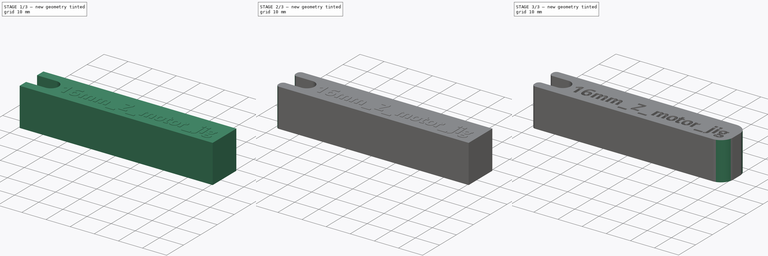
[diagram: build sequence overview — one tinted view per stage of 3, left to right]
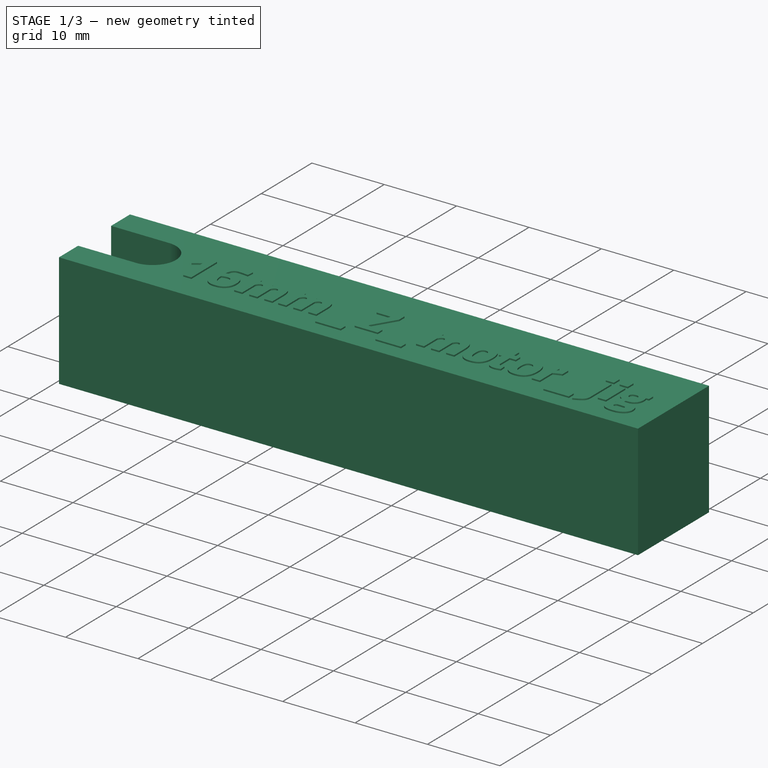
[diagram: stage 1 of 3 — iso view after this stage's code; geometry added in this stage tinted green]
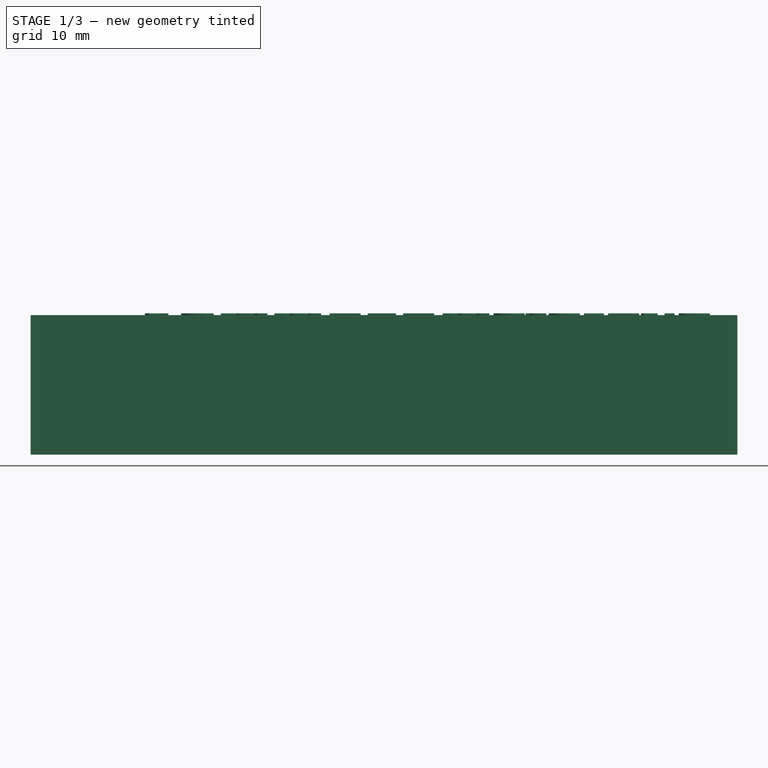
[diagram: stage 1 of 3 — front view after this stage's code; geometry added in this stage tinted green]
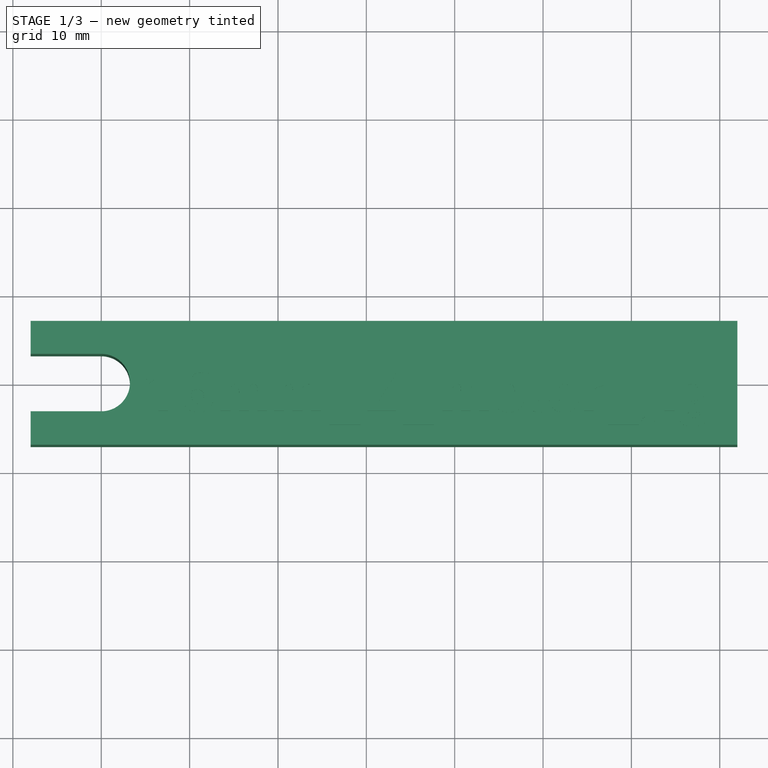
[diagram: stage 1 of 3 — top view after this stage's code; geometry added in this stage tinted green]
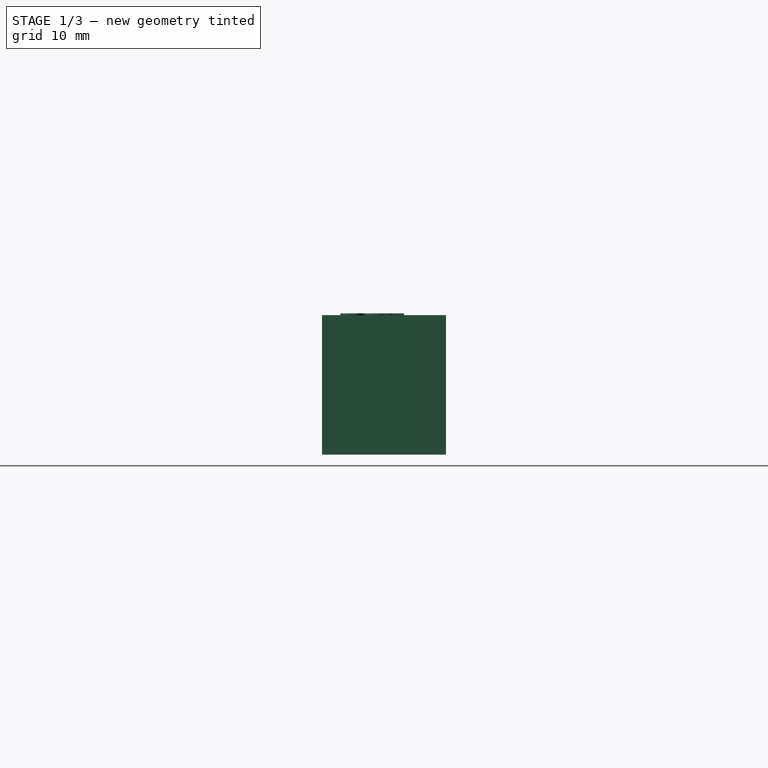
[diagram: stage 1 of 3 — right view after this stage's code; geometry added in this stage tinted green]
FCSTD DOCUMENT  (FreeCAD 0.16R5861 (Git))
Label: 16mm_coupler_spacer_Z_axis_v0.1
License: CreativeCommons Attribution-ShareAlike
LicenseURL: http://creativecommons.org/licenses/by-sa/4.0/
objects: PartDesign::Pad×2, PartDesign::Fillet×2, Sketcher::SketchObject×1, Part::Part2DObjectPython×1, Part::Cut×1
note: 9 computed .brp shape members not serialized (recipe doc carries the construction recipe); baked Part::Feature solids carry a one-line shape summary decoded from their .brp

FEATURE [Sketcher::SketchObject] Sketch
  sketch-geometry (8):
    g0: ArcOfCircle CenterX=0 CenterY=0 CenterZ=0 NormalX=0 NormalY=0 NormalZ=1 Radius=3.25 StartAngle=4.71239 EndAngle=7.85398
    g1: LineSegment StartX=0 StartY=3.25 StartZ=0 EndX=-8 EndY=3.25 EndZ=0
    g2: LineSegment StartX=0 StartY=-3.25 StartZ=0 EndX=-8 EndY=-3.25 EndZ=0
    g3: LineSegment StartX=-8 StartY=3.25 StartZ=0 EndX=-8 EndY=6.98835 EndZ=0
    g4: LineSegment StartX=-8 StartY=6.98835 StartZ=0 EndX=72 EndY=6.98835 EndZ=0
    g5: LineSegment StartX=-8 StartY=-3.25 StartZ=0 EndX=-8 EndY=-7.0354 EndZ=0
    g6: LineSegment StartX=-8 StartY=-7.0354 StartZ=0 EndX=72 EndY=-7.0354 EndZ=0
    g7: LineSegment StartX=72 StartY=6.98835 StartZ=0 EndX=72 EndY=-7.0354 EndZ=0
  constraints (22):
    c: Coincident(g0,g-1)
    c: PointOnObject(g0,g-2)
    c: PointOnObject(g0,g-2)
    c: Radius(g0) = 3.25
    c: Coincident(g1,g0)
    c: Horizontal(g1)
    c: Coincident(g2,g0)
    c: Horizontal(g2)
    c: DistanceX(g1) = -8
    c: DistanceX(g2) = -8
    c: Coincident(g1,g3)
    c: Vertical(g3)
    c: Coincident(g3,g4)
    c: Horizontal(g4)
    c: Coincident(g2,g5)
    c: Vertical(g5)
    c: Coincident(g5,g6)
    c: Horizontal(g6)
    c: DistanceX(g4) = 80
    c: DistanceX(g6) = 80
    c: Coincident(g7,g4)
    c: Coincident(g7,g6)
FEATURE [PartDesign::Pad] Pad
  Length = 15.8
  Length2 = 100
  Sketch = -> Sketch
  Type = 0
FEATURE [Part::Part2DObjectPython] ShapeString  # Draft 2D object (typed FeaturePython)
  FontFile = <userpath>/Desktop/Titillium-BoldUpright.otf
  Placement = pos=(4.39924,-3.19663,14) rot=(0,0,1;0rad)
  Size = 3
  String = 16mm_Z_motor_jig
  Tracking = 0
FEATURE [PartDesign::Pad] Pad001
  Length = 2
  Length2 = 100
  Placement = pos=(4.39924,-3.19663,14) rot=(0,0,1;0rad)
  Sketch = -> ShapeString
  Type = 0
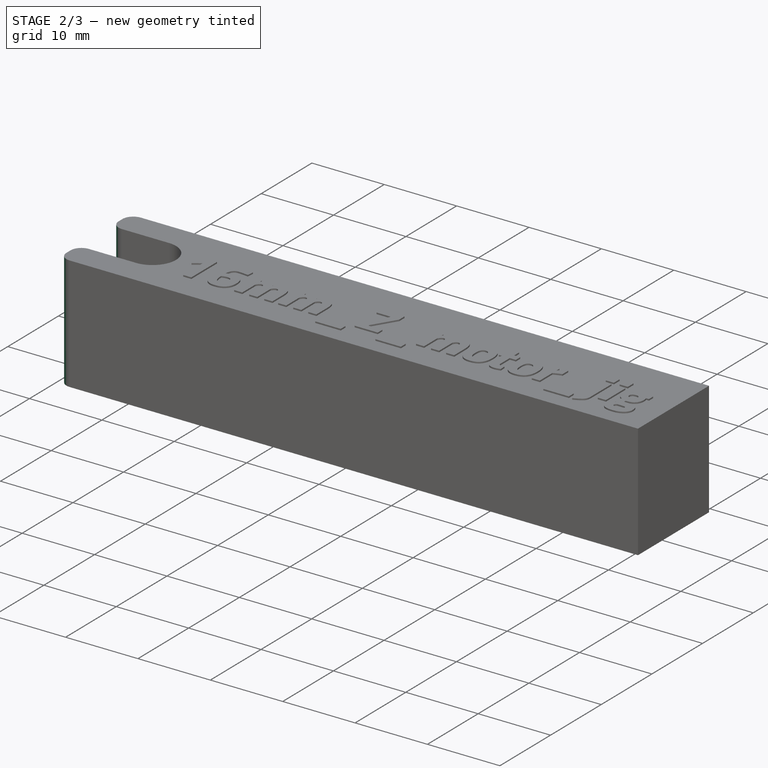
[diagram: stage 2 of 3 — iso view after this stage's code; geometry added in this stage tinted green]
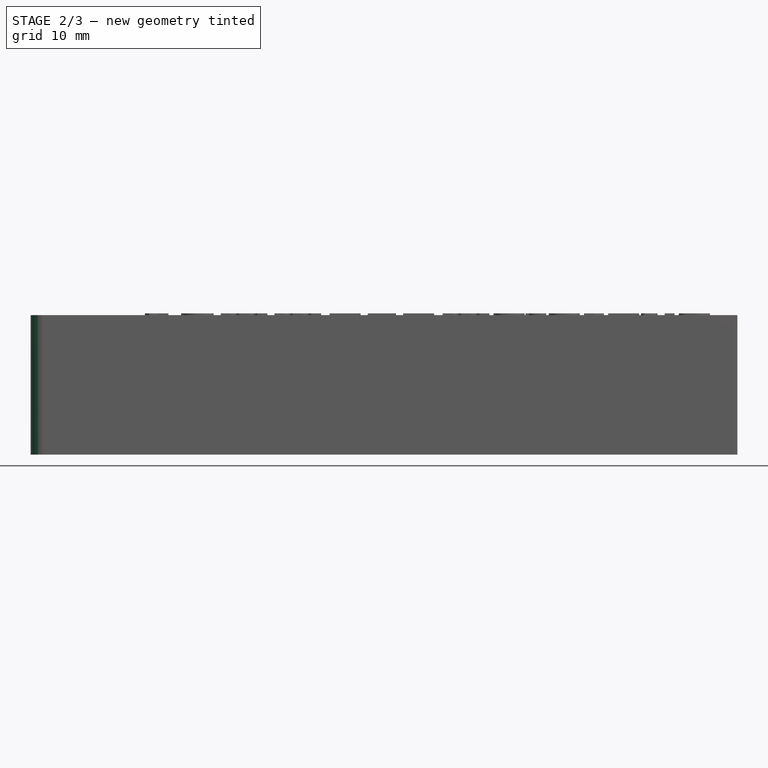
[diagram: stage 2 of 3 — front view after this stage's code; geometry added in this stage tinted green]
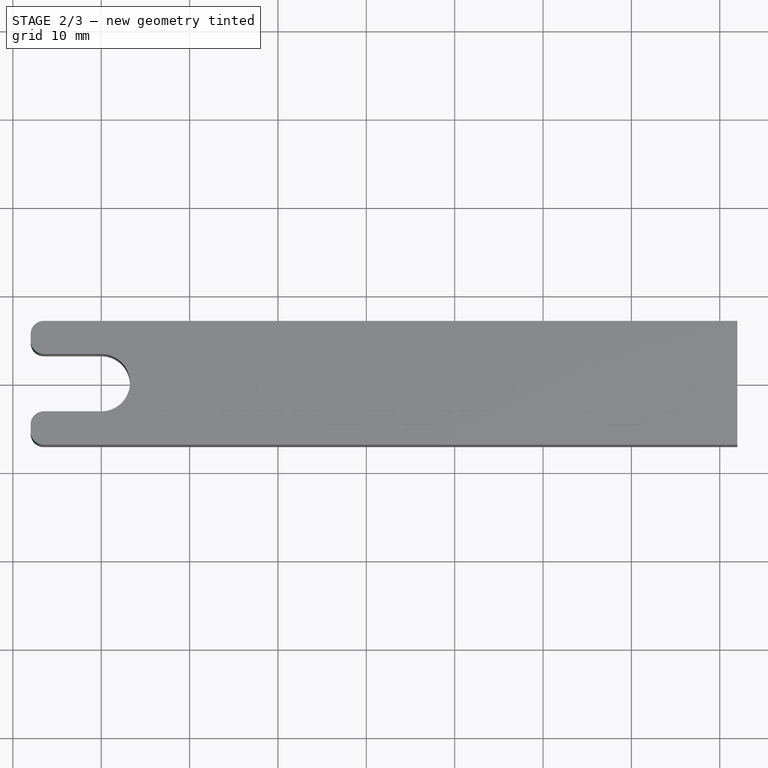
[diagram: stage 2 of 3 — top view after this stage's code; geometry added in this stage tinted green]
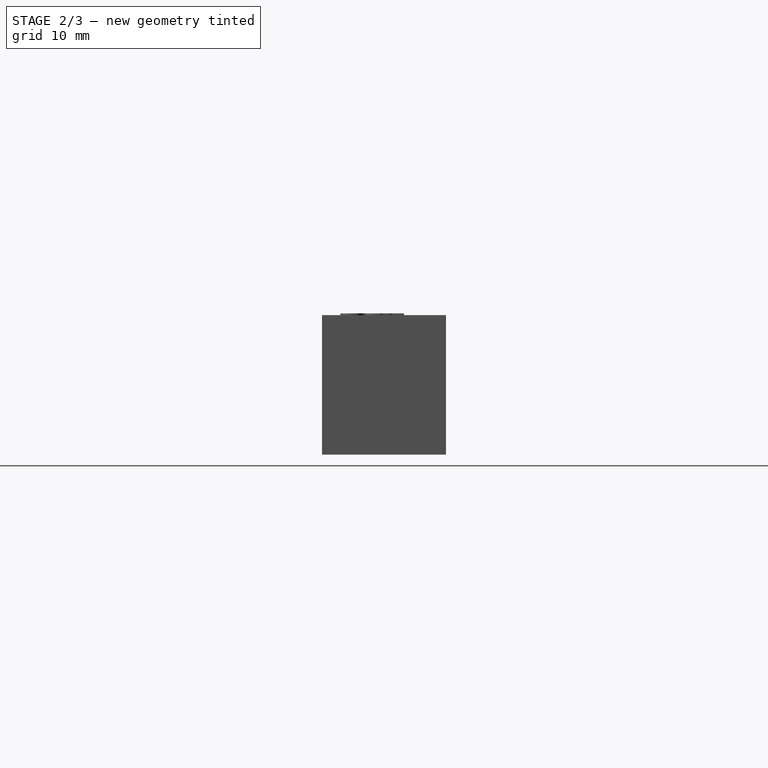
[diagram: stage 2 of 3 — right view after this stage's code; geometry added in this stage tinted green]
FEATURE [PartDesign::Fillet] Fillet
  Base = -> Pad [Edge17,Edge20,Edge5,Edge8]
  Radius = 1.5
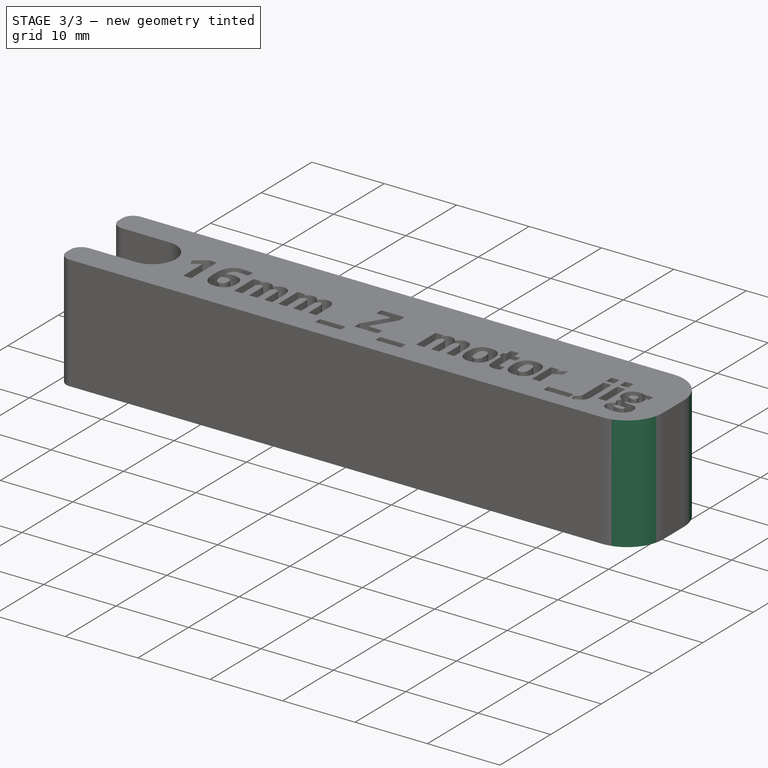
[diagram: stage 3 of 3 — iso view after this stage's code; geometry added in this stage tinted green]
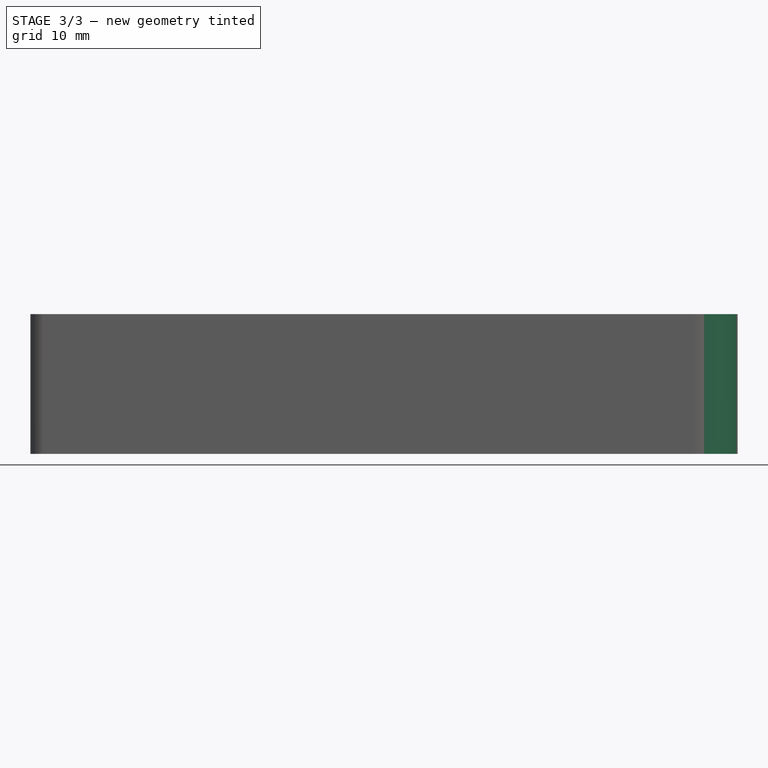
[diagram: stage 3 of 3 — front view after this stage's code; geometry added in this stage tinted green]
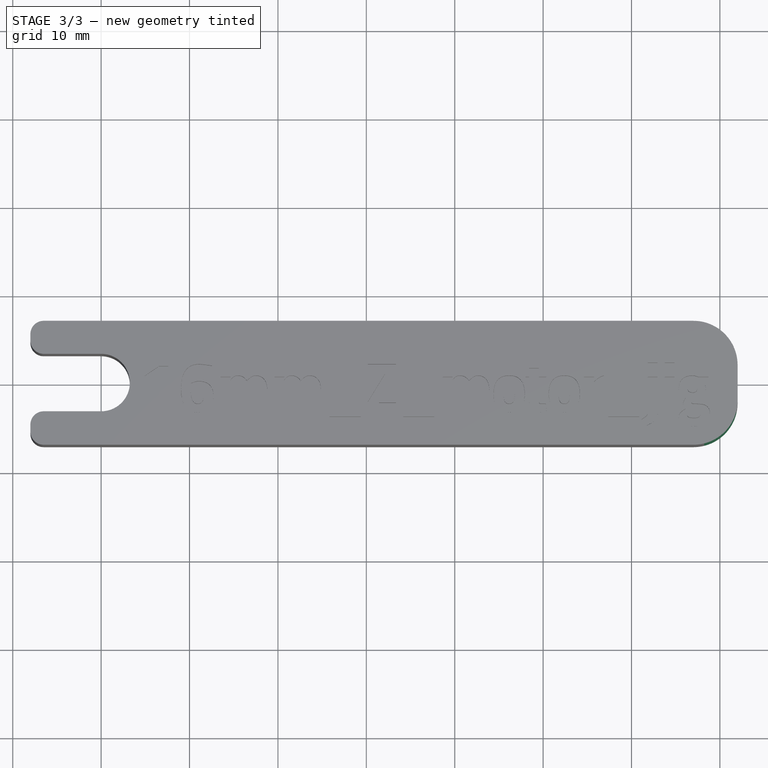
[diagram: stage 3 of 3 — top view after this stage's code; geometry added in this stage tinted green]
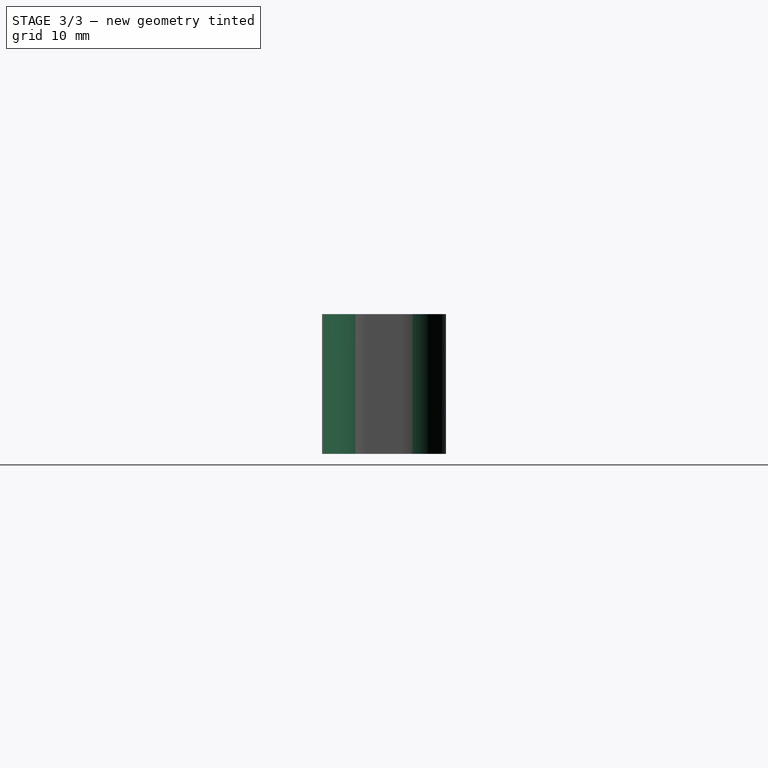
[diagram: stage 3 of 3 — right view after this stage's code; geometry added in this stage tinted green]
FEATURE [PartDesign::Fillet] Fillet001
  Base = -> Fillet [Edge35,Edge33]
  Radius = 5
FEATURE [Part::Cut] Cut
  Base = -> Fillet001
  Tool = -> Pad001
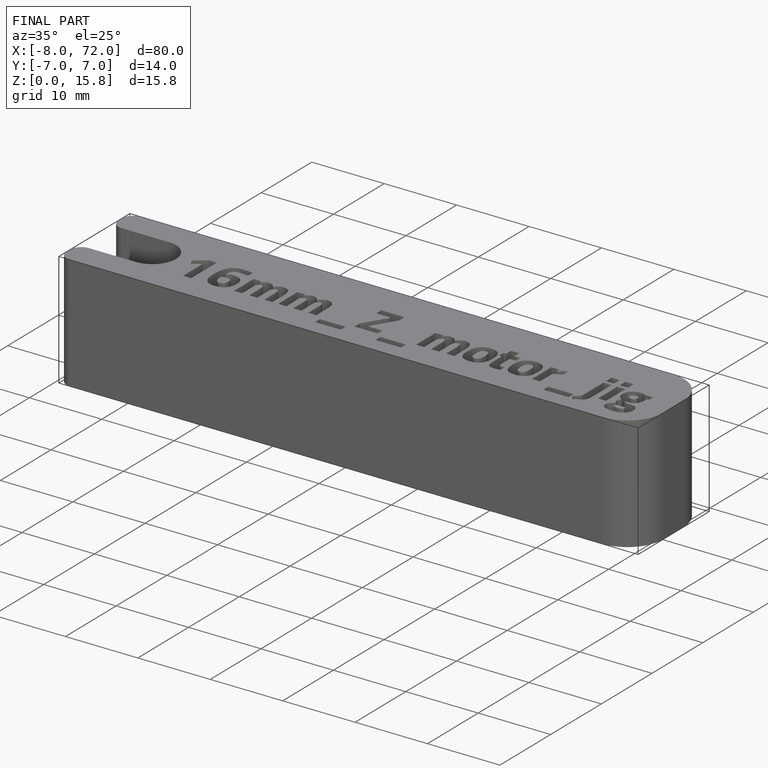
[diagram: finished part — iso view with bounding-box wireframe]
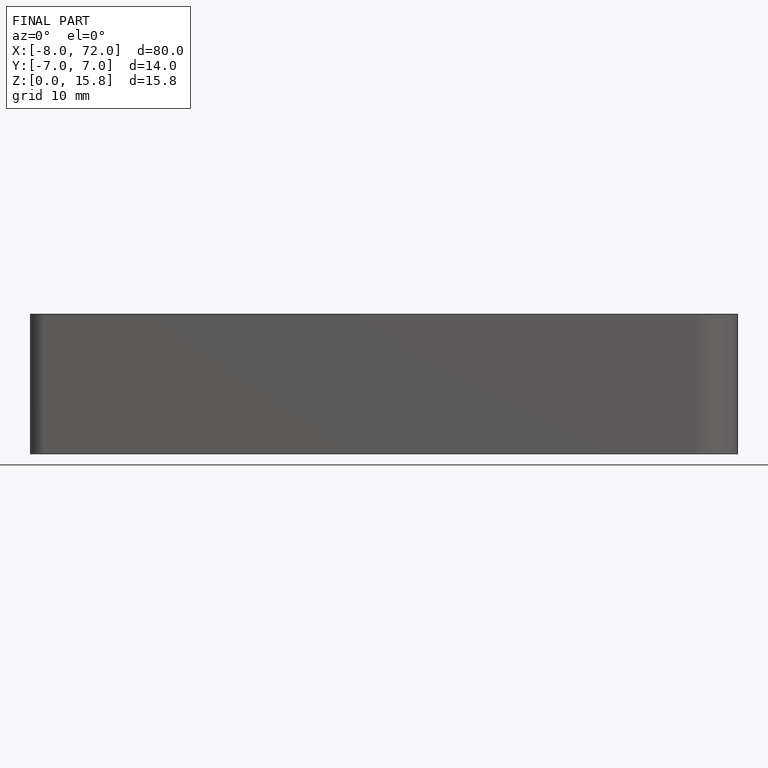
[diagram: finished part — front view with bounding-box wireframe]
